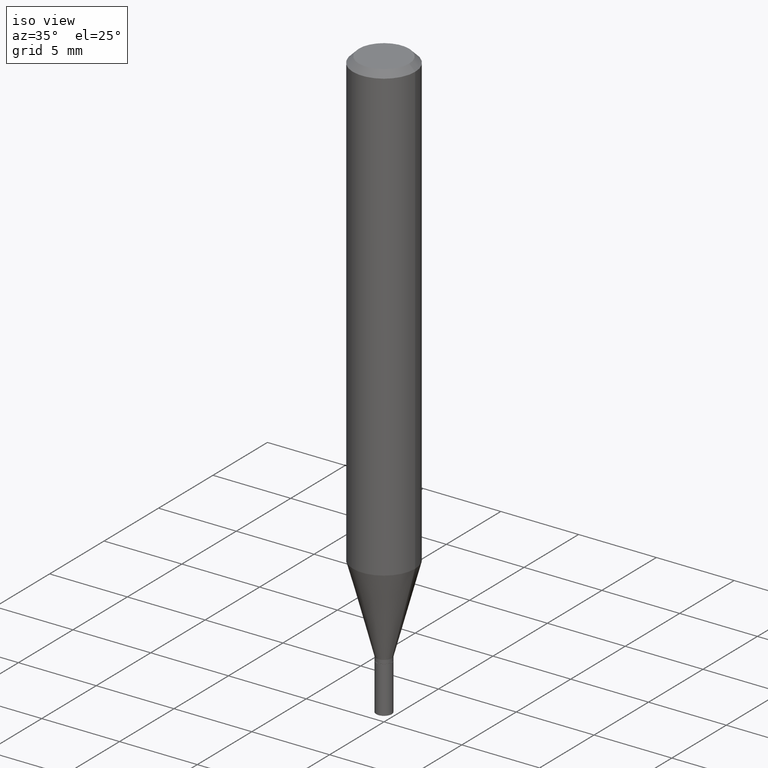
[diagram: clean part render]
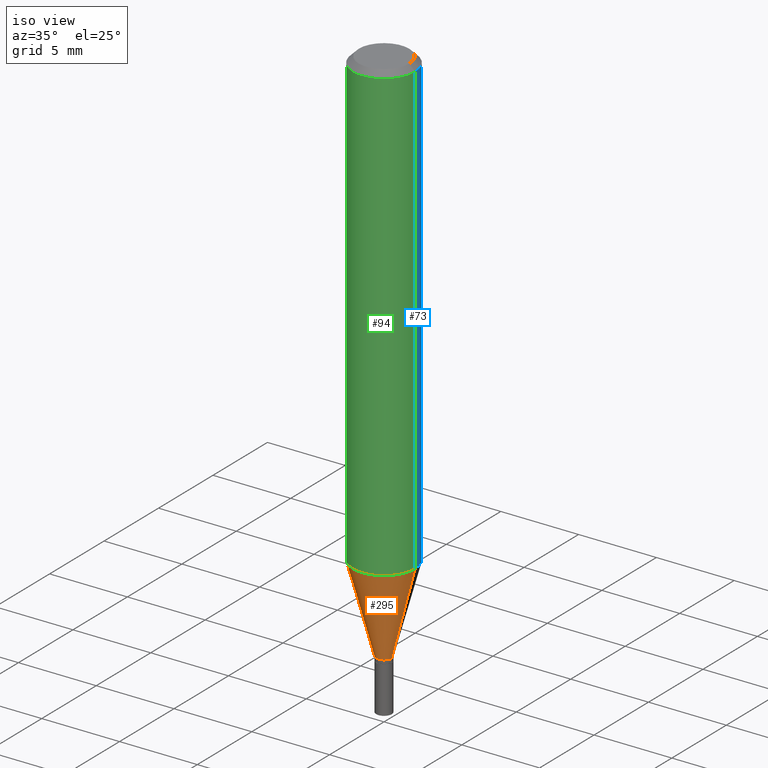
[diagram: same view with three faces highlighted in distinct colors, each labeled with its STEP entity id]
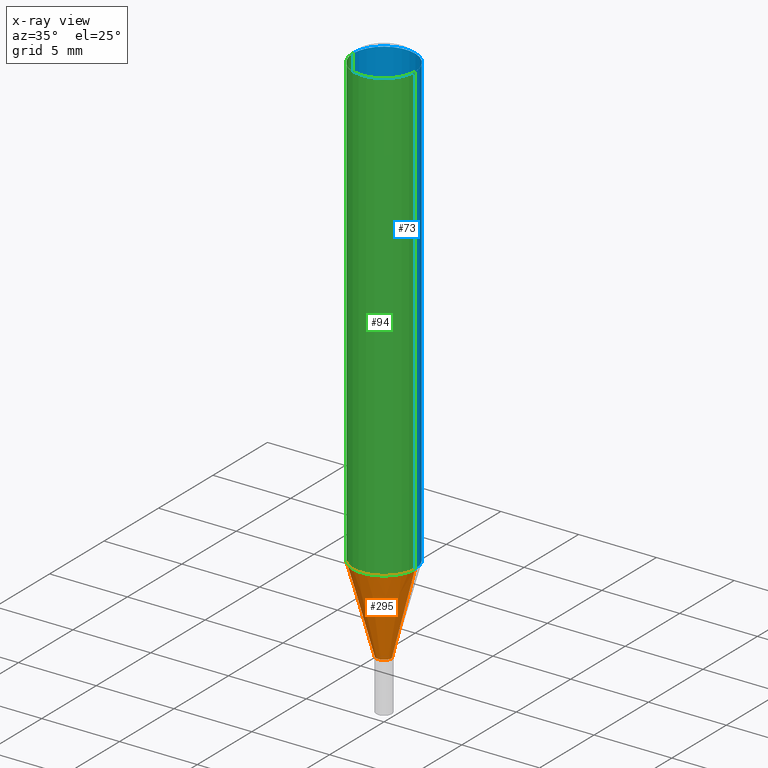
[diagram: x-ray of the same camera — body ghosted, the three highlighted faces saturated]
A machine part, iso view with three faces highlighted in distinct colors.
The next image is the same camera in x-ray (body ghosted, the three faces saturated) — at least one of them is partly hidden behind the body in this view.
Their STEP definitions:

[orange] entity #295 — the highlighted conical surface has half-angle 15 deg.
#4 = VERTEX_POINT ( 'NONE', #46 ) ;
#8 = EDGE_CURVE ( 'NONE', #4, #303, #204, .T. ) ;
#11 = CARTESIAN_POINT ( 'NONE',  ( -0.01969999999999963794, -4.650335477948058966E-15, -1.372000000000000108 ) ) ;
#24 = AXIS2_PLACEMENT_3D ( 'NONE', #385, #121, #131 ) ;
#27 = EDGE_CURVE ( 'NONE', #338, #184, #408, .T. ) ;
#44 = LINE ( 'NONE', #68, #443 ) ;
#46 = CARTESIAN_POINT ( 'NONE',  ( -0.07874999999999997280, -3.461315713929970124E-15, -1.151622399813057029 ) ) ;
#55 = CARTESIAN_POINT ( 'NONE',  ( 3.355183202086007133E-29, -4.790312396892795908E-15, -1.372000000000000108 ) ) ;
#61 = CARTESIAN_POINT ( 'NONE',  ( 0.01969999999999963794, -4.927876761643212756E-15, -1.372000000000000108 ) ) ;
#68 = CARTESIAN_POINT ( 'NONE',  ( 0.01969999999999963794, -4.927876761643212756E-15, -1.372000000000000108 ) ) ;
#79 = LINE ( 'NONE', #11, #426 ) ;
#104 = FACE_OUTER_BOUND ( 'NONE', #332, .T. ) ;
#121 = DIRECTION ( 'NONE',  ( -2.445468806185136597E-29, 3.491481338843145583E-15, 1.000000000000000000 ) ) ;
#131 = DIRECTION ( 'NONE',  ( 1.000000000000000000, -6.982962677686268288E-15, 0.000000000000000000 ) ) ;
#151 = ORIENTED_EDGE ( 'NONE', *, *, #8, .F. ) ;
#184 = VERTEX_POINT ( 'NONE', #61 ) ;
#185 = CARTESIAN_POINT ( 'NONE',  ( 0.07874999999999997280, -4.570776429208843061E-15, -1.151622399813057029 ) ) ;
#193 = DIRECTION ( 'NONE',  ( -0.2588190451025214611, 5.211531920934551042E-15, 0.9659258262890682012 ) ) ;
#204 = CIRCLE ( 'NONE', #24, 0.07875000000000000056 ) ;
#217 = DIRECTION ( 'NONE',  ( 0.2588190451025214611, 1.565188264969621573E-15, 0.9659258262890682012 ) ) ;
#221 = DIRECTION ( 'NONE',  ( -2.445468806185136597E-29, 3.491481338843145583E-15, 1.000000000000000000 ) ) ;
#295 = ADVANCED_FACE ( 'NONE', ( #104 ), #374, .T. ) ;
#302 = CARTESIAN_POINT ( 'NONE',  ( -0.01969999999999963794, -4.055825595939014545E-15, -1.372000000000000108 ) ) ;
#303 = VERTEX_POINT ( 'NONE', #185 ) ;
#312 = DIRECTION ( 'NONE',  ( -2.445468806185136597E-29, 3.491481338843145583E-15, 1.000000000000000000 ) ) ;
#332 = EDGE_LOOP ( 'NONE', ( #365, #401, #396, #151 ) ) ;
#338 = VERTEX_POINT ( 'NONE', #302 ) ;
#365 = ORIENTED_EDGE ( 'NONE', *, *, #429, .F. ) ;
#374 = CONICAL_SURFACE ( 'NONE', #435, 0.01969999999999963794, 0.2617993877991501295 ) ;
#385 = CARTESIAN_POINT ( 'NONE',  ( 2.816256655246898649E-29, -4.020868118341048926E-15, -1.151622399813057029 ) ) ;
#391 = EDGE_CURVE ( 'NONE', #184, #303, #44, .T. ) ;
#396 = ORIENTED_EDGE ( 'NONE', *, *, #391, .T. ) ;
#401 = ORIENTED_EDGE ( 'NONE', *, *, #27, .T. ) ;
#408 = CIRCLE ( 'NONE', #463, 0.01969999999999963794 ) ;
#426 = VECTOR ( 'NONE', #193, 39.37007874015747433 ) ;
#429 = EDGE_CURVE ( 'NONE', #338, #4, #79, .T. ) ;
#431 = DIRECTION ( 'NONE',  ( 1.000000000000000000, -6.982962677686258822E-15, 0.000000000000000000 ) ) ;
#435 = AXIS2_PLACEMENT_3D ( 'NONE', #465, #221, #431 ) ;
#443 = VECTOR ( 'NONE', #217, 39.37007874015747433 ) ;
#451 = DIRECTION ( 'NONE',  ( 1.000000000000000000, -6.982962677686258822E-15, 0.000000000000000000 ) ) ;
#463 = AXIS2_PLACEMENT_3D ( 'NONE', #55, #312, #451 ) ;
#465 = CARTESIAN_POINT ( 'NONE',  ( 3.355183202086007133E-29, -4.790312396892795908E-15, -1.372000000000000108 ) ) ;

[blue] entity #73 — the highlighted cylindrical surface (partial cylindrical patch) has radius 2.0002 mm, axis along (-0, 0, 1).
#2 = EDGE_CURVE ( 'NONE', #303, #4, #144, .T. ) ;
#4 = VERTEX_POINT ( 'NONE', #46 ) ;
#14 = CARTESIAN_POINT ( 'NONE',  ( 0.07875000000000000056, -6.022805309504406221E-16, -0.01499999999999999944 ) ) ;
#18 = ORIENTED_EDGE ( 'NONE', *, *, #230, .F. ) ;
#46 = CARTESIAN_POINT ( 'NONE',  ( -0.07874999999999997280, -3.461315713929970124E-15, -1.151622399813057029 ) ) ;
#47 = VECTOR ( 'NONE', #143, 39.37007874015748143 ) ;
#54 = CARTESIAN_POINT ( 'NONE',  ( 3.668203209277705088E-31, -5.237222008264718399E-17, -0.01499999999999999944 ) ) ;
#56 = EDGE_CURVE ( 'NONE', #433, #258, #265, .T. ) ;
#73 = ADVANCED_FACE ( 'NONE', ( #84 ), #199, .T. ) ;
#80 = AXIS2_PLACEMENT_3D ( 'NONE', #235, #267, #417 ) ;
#84 = FACE_OUTER_BOUND ( 'NONE', #156, .T. ) ;
#93 = DIRECTION ( 'NONE',  ( 1.000000000000000000, -6.982962677686265922E-15, 4.876176775795935232E-29 ) ) ;
#109 = EDGE_CURVE ( 'NONE', #4, #258, #424, .T. ) ;
#127 = CARTESIAN_POINT ( 'NONE',  ( 0.000000000000000000, 0.000000000000000000, 0.000000000000000000 ) ) ;
#143 = DIRECTION ( 'NONE',  ( -2.445468806185136877E-29, 3.491481338843145188E-15, 1.000000000000000000 ) ) ;
#144 = CIRCLE ( 'NONE', #80, 0.07875000000000000056 ) ;
#153 = ORIENTED_EDGE ( 'NONE', *, *, #109, .T. ) ;
#156 = EDGE_LOOP ( 'NONE', ( #441, #153, #409, #18 ) ) ;
#185 = CARTESIAN_POINT ( 'NONE',  ( 0.07874999999999997280, -4.570776429208843061E-15, -1.151622399813057029 ) ) ;
#199 = CYLINDRICAL_SURFACE ( 'NONE', #388, 0.07875000000000000056 ) ;
#202 = DIRECTION ( 'NONE',  ( -2.445468806185136597E-29, 3.491481338843145583E-15, 1.000000000000000000 ) ) ;
#230 = EDGE_CURVE ( 'NONE', #303, #433, #427, .T. ) ;
#235 = CARTESIAN_POINT ( 'NONE',  ( 2.816256655246898649E-29, -4.020868118341048926E-15, -1.151622399813057029 ) ) ;
#247 = CARTESIAN_POINT ( 'NONE',  ( 0.07875000000000000056, -5.499083108677934443E-16, 3.839989210939299016E-30 ) ) ;
#258 = VERTEX_POINT ( 'NONE', #407 ) ;
#265 = CIRCLE ( 'NONE', #323, 0.07875000000000000056 ) ;
#267 = DIRECTION ( 'NONE',  ( -2.445468806185136597E-29, 3.491481338843145583E-15, 1.000000000000000000 ) ) ;
#269 = DIRECTION ( 'NONE',  ( -2.445468806185136597E-29, 3.491481338843145583E-15, 1.000000000000000000 ) ) ;
#303 = VERTEX_POINT ( 'NONE', #185 ) ;
#323 = AXIS2_PLACEMENT_3D ( 'NONE', #54, #269, #377 ) ;
#360 = CARTESIAN_POINT ( 'NONE',  ( -0.07875000000000000056, 5.595524044110789003E-16, -3.873661383575737792E-30 ) ) ;
#377 = DIRECTION ( 'NONE',  ( 1.000000000000000000, -6.982962677686265922E-15, 0.000000000000000000 ) ) ;
#388 = AXIS2_PLACEMENT_3D ( 'NONE', #127, #202, #93 ) ;
#390 = DIRECTION ( 'NONE',  ( -2.445468806185136877E-29, 3.491481338843145188E-15, 1.000000000000000000 ) ) ;
#407 = CARTESIAN_POINT ( 'NONE',  ( -0.07875000000000000056, -1.477067764800769201E-15, -0.01499999999999999944 ) ) ;
#409 = ORIENTED_EDGE ( 'NONE', *, *, #56, .F. ) ;
#417 = DIRECTION ( 'NONE',  ( 1.000000000000000000, -6.982962677686268288E-15, 0.000000000000000000 ) ) ;
#424 = LINE ( 'NONE', #360, #47 ) ;
#427 = LINE ( 'NONE', #247, #449 ) ;
#433 = VERTEX_POINT ( 'NONE', #14 ) ;
#441 = ORIENTED_EDGE ( 'NONE', *, *, #2, .T. ) ;
#449 = VECTOR ( 'NONE', #390, 39.37007874015748143 ) ;

[green] entity #94 — the highlighted cylindrical surface (partial cylindrical patch) has radius 2.0002 mm, axis along (-0, 0, 1).
#4 = VERTEX_POINT ( 'NONE', #46 ) ;
#8 = EDGE_CURVE ( 'NONE', #4, #303, #204, .T. ) ;
#14 = CARTESIAN_POINT ( 'NONE',  ( 0.07875000000000000056, -6.022805309504406221E-16, -0.01499999999999999944 ) ) ;
#24 = AXIS2_PLACEMENT_3D ( 'NONE', #385, #121, #131 ) ;
#26 = ORIENTED_EDGE ( 'NONE', *, *, #174, .F. ) ;
#31 = CARTESIAN_POINT ( 'NONE',  ( 3.668203209277705088E-31, -5.237222008264718399E-17, -0.01499999999999999944 ) ) ;
#46 = CARTESIAN_POINT ( 'NONE',  ( -0.07874999999999997280, -3.461315713929970124E-15, -1.151622399813057029 ) ) ;
#47 = VECTOR ( 'NONE', #143, 39.37007874015748143 ) ;
#82 = ORIENTED_EDGE ( 'NONE', *, *, #8, .T. ) ;
#91 = FACE_OUTER_BOUND ( 'NONE', #439, .T. ) ;
#94 = ADVANCED_FACE ( 'NONE', ( #91 ), #165, .T. ) ;
#109 = EDGE_CURVE ( 'NONE', #4, #258, #424, .T. ) ;
#121 = DIRECTION ( 'NONE',  ( -2.445468806185136597E-29, 3.491481338843145583E-15, 1.000000000000000000 ) ) ;
#131 = DIRECTION ( 'NONE',  ( 1.000000000000000000, -6.982962677686268288E-15, 0.000000000000000000 ) ) ;
#135 = AXIS2_PLACEMENT_3D ( 'NONE', #31, #318, #320 ) ;
#143 = DIRECTION ( 'NONE',  ( -2.445468806185136877E-29, 3.491481338843145188E-15, 1.000000000000000000 ) ) ;
#165 = CYLINDRICAL_SURFACE ( 'NONE', #166, 0.07875000000000000056 ) ;
#166 = AXIS2_PLACEMENT_3D ( 'NONE', #276, #418, #239 ) ;
#174 = EDGE_CURVE ( 'NONE', #258, #433, #343, .T. ) ;
#185 = CARTESIAN_POINT ( 'NONE',  ( 0.07874999999999997280, -4.570776429208843061E-15, -1.151622399813057029 ) ) ;
#204 = CIRCLE ( 'NONE', #24, 0.07875000000000000056 ) ;
#230 = EDGE_CURVE ( 'NONE', #303, #433, #427, .T. ) ;
#239 = DIRECTION ( 'NONE',  ( 1.000000000000000000, -6.982962677686265922E-15, 4.876176775795935232E-29 ) ) ;
#247 = CARTESIAN_POINT ( 'NONE',  ( 0.07875000000000000056, -5.499083108677934443E-16, 3.839989210939299016E-30 ) ) ;
#258 = VERTEX_POINT ( 'NONE', #407 ) ;
#276 = CARTESIAN_POINT ( 'NONE',  ( 0.000000000000000000, 0.000000000000000000, 0.000000000000000000 ) ) ;
#303 = VERTEX_POINT ( 'NONE', #185 ) ;
#318 = DIRECTION ( 'NONE',  ( -2.445468806185136597E-29, 3.491481338843145583E-15, 1.000000000000000000 ) ) ;
#320 = DIRECTION ( 'NONE',  ( 1.000000000000000000, -6.982962677686265922E-15, 0.000000000000000000 ) ) ;
#341 = ORIENTED_EDGE ( 'NONE', *, *, #230, .T. ) ;
#343 = CIRCLE ( 'NONE', #135, 0.07875000000000000056 ) ;
#360 = CARTESIAN_POINT ( 'NONE',  ( -0.07875000000000000056, 5.595524044110789003E-16, -3.873661383575737792E-30 ) ) ;
#370 = ORIENTED_EDGE ( 'NONE', *, *, #109, .F. ) ;
#385 = CARTESIAN_POINT ( 'NONE',  ( 2.816256655246898649E-29, -4.020868118341048926E-15, -1.151622399813057029 ) ) ;
#390 = DIRECTION ( 'NONE',  ( -2.445468806185136877E-29, 3.491481338843145188E-15, 1.000000000000000000 ) ) ;
#407 = CARTESIAN_POINT ( 'NONE',  ( -0.07875000000000000056, -1.477067764800769201E-15, -0.01499999999999999944 ) ) ;
#418 = DIRECTION ( 'NONE',  ( -2.445468806185136597E-29, 3.491481338843145583E-15, 1.000000000000000000 ) ) ;
#424 = LINE ( 'NONE', #360, #47 ) ;
#427 = LINE ( 'NONE', #247, #449 ) ;
#433 = VERTEX_POINT ( 'NONE', #14 ) ;
#439 = EDGE_LOOP ( 'NONE', ( #370, #82, #341, #26 ) ) ;
#449 = VECTOR ( 'NONE', #390, 39.37007874015748143 ) ;